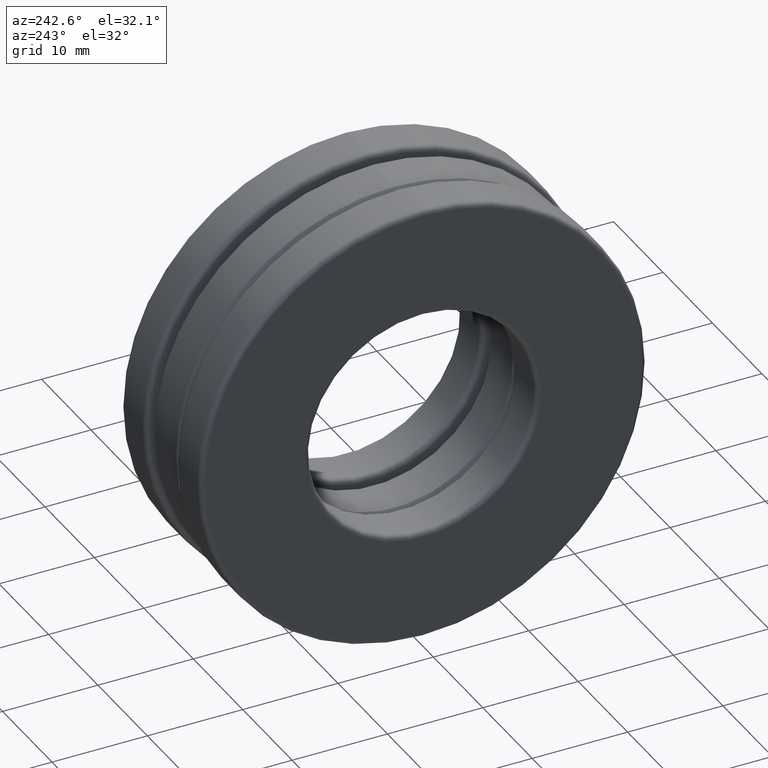
[diagram: clean part render]
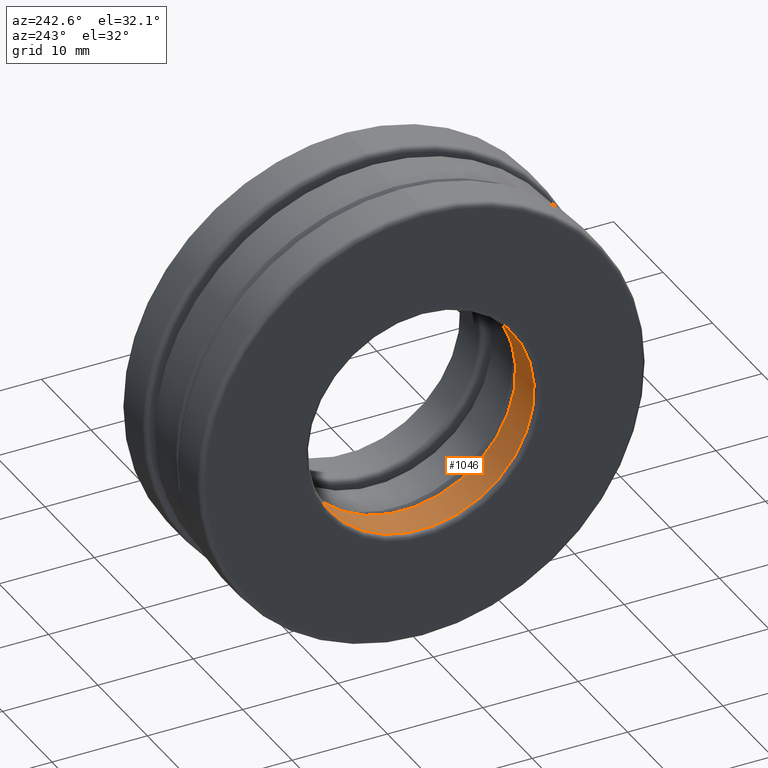
[diagram: same view with one face highlighted and labeled with its STEP entity id]
A machine part, auxiliary view. The second image highlights one B-rep face of the part: STEP entity #1046.
In plain terms, the highlighted cylindrical surface (bore or boss wall) has radius 11.9062 mm, axis along (-1, -0, -0).
Its self-contained STEP definition (entity closure, byte-faithful):
#20 = CARTESIAN_POINT ( 'NONE',  ( -0.2925000000000000400, 0.0000000000000000000, 0.0000000000000000000 ) ) ;
#140 = CARTESIAN_POINT ( 'NONE',  ( -0.2925000000000000400, 0.0000000000000000000, 0.4687500000000000000 ) ) ;
#237 = CARTESIAN_POINT ( 'NONE',  ( 0.0000000000000000000, 0.0000000000000000000, 0.0000000000000000000 ) ) ;
#286 = DIRECTION ( 'NONE',  ( 0.0000000000000000000, 0.0000000000000000000, 1.000000000000000000 ) ) ;
#329 = CIRCLE ( 'NONE', #630, 0.4687500000000000000 ) ;
#347 = DIRECTION ( 'NONE',  ( -1.000000000000000000, -0.0000000000000000000, -0.0000000000000000000 ) ) ;
#408 = DIRECTION ( 'NONE',  ( -1.000000000000000000, -0.0000000000000000000, -0.0000000000000000000 ) ) ;
#422 = CYLINDRICAL_SURFACE ( 'NONE', #1216, 0.4687500000000000000 ) ;
#459 = DIRECTION ( 'NONE',  ( 0.0000000000000000000, 0.0000000000000000000, 1.000000000000000000 ) ) ;
#513 = EDGE_CURVE ( 'NONE', #1373, #1373, #329, .T. ) ;
#577 = DIRECTION ( 'NONE',  ( 0.0000000000000000000, 0.0000000000000000000, 1.000000000000000000 ) ) ;
#617 = AXIS2_PLACEMENT_3D ( 'NONE', #849, #408, #286 ) ;
#630 = AXIS2_PLACEMENT_3D ( 'NONE', #20, #1161, #577 ) ;
#645 = EDGE_CURVE ( 'NONE', #1205, #1205, #991, .T. ) ;
#710 = ORIENTED_EDGE ( 'NONE', *, *, #513, .T. ) ;
#849 = CARTESIAN_POINT ( 'NONE',  ( -0.1450000000000000500, 0.0000000000000000000, 0.0000000000000000000 ) ) ;
#951 = CARTESIAN_POINT ( 'NONE',  ( -0.1450000000000000500, 0.0000000000000000000, 0.4687500000000000000 ) ) ;
#960 = FACE_OUTER_BOUND ( 'NONE', #1382, .T. ) ;
#991 = CIRCLE ( 'NONE', #617, 0.4687500000000000000 ) ;
#1046 = ADVANCED_FACE ( 'NONE', ( #960, #1458 ), #422, .F. ) ;
#1161 = DIRECTION ( 'NONE',  ( -1.000000000000000000, -0.0000000000000000000, -0.0000000000000000000 ) ) ;
#1169 = EDGE_LOOP ( 'NONE', ( #1307 ) ) ;
#1205 = VERTEX_POINT ( 'NONE', #951 ) ;
#1216 = AXIS2_PLACEMENT_3D ( 'NONE', #237, #347, #459 ) ;
#1307 = ORIENTED_EDGE ( 'NONE', *, *, #645, .F. ) ;
#1373 = VERTEX_POINT ( 'NONE', #140 ) ;
#1382 = EDGE_LOOP ( 'NONE', ( #710 ) ) ;
#1458 = FACE_OUTER_BOUND ( 'NONE', #1169, .T. ) ;